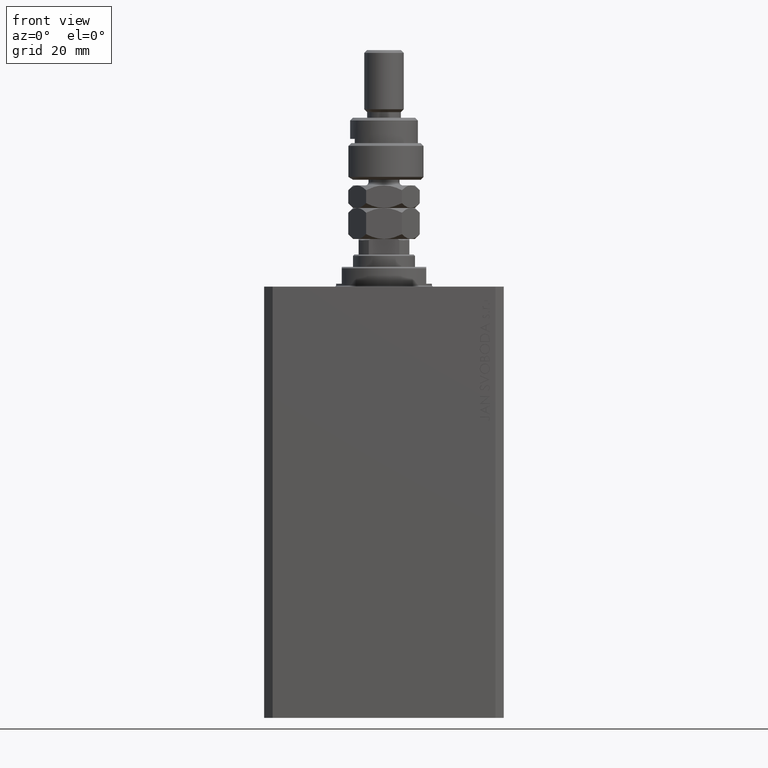
[diagram: clean part render]
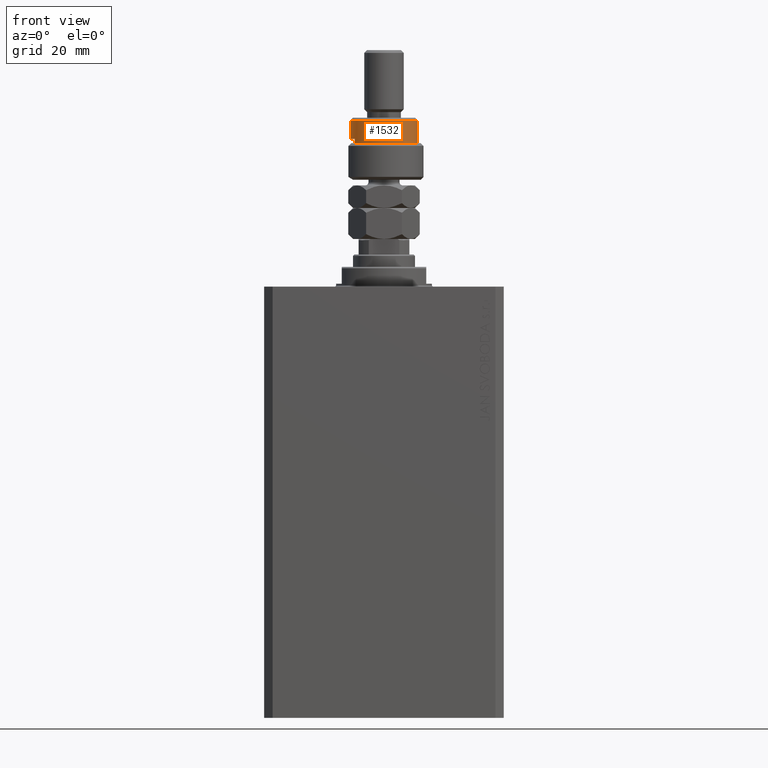
[diagram: same view with one face highlighted and labeled with its STEP entity id]
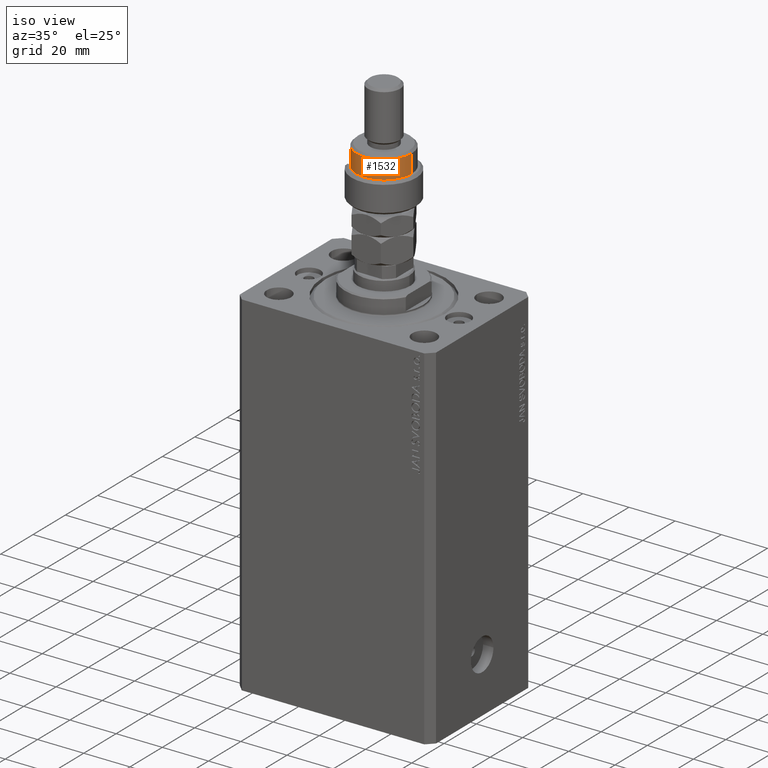
[diagram: same view with one face highlighted and labeled with its STEP entity id]
A machine part, front view. The second image highlights one B-rep face of the part: STEP entity #1532.
A second angle (iso view) of the same face is appended — the face is thin or edge-on in the first view.
In plain terms, the highlighted cylindrical surface (edge-blend (fillet) strip) has radius 12 mm, axis along (-0, -0, -1).
Its self-contained STEP definition (entity closure, byte-faithful):
#1532 = ADVANCED_FACE ( 'NONE', ( #17494 ), #32248, .T. ) ;
#2650 = ORIENTED_EDGE ( 'NONE', *, *, #22310, .T. ) ;
#2657 = CARTESIAN_POINT ( 'NONE',  ( 12.00000000000000178, 1.469576158976824144E-15, 20.99999999999999645 ) ) ;
#2775 = DIRECTION ( 'NONE',  ( 1.000000000000000000, 0.000000000000000000, 0.000000000000000000 ) ) ;
#3844 = CARTESIAN_POINT ( 'NONE',  ( -10.39230484541326760, -6.000000000000000000, 13.00000000000000000 ) ) ;
#4493 = VECTOR ( 'NONE', #10457, 1000.000000000000000 ) ;
#4706 = ORIENTED_EDGE ( 'NONE', *, *, #42876, .F. ) ;
#5088 = ORIENTED_EDGE ( 'NONE', *, *, #41873, .T. ) ;
#5980 = AXIS2_PLACEMENT_3D ( 'NONE', #45538, #35031, #12635 ) ;
#6588 = CARTESIAN_POINT ( 'NONE',  ( 0.000000000000000000, 0.000000000000000000, 20.99999999999999645 ) ) ;
#7765 = DIRECTION ( 'NONE',  ( -0.000000000000000000, -0.000000000000000000, -1.000000000000000000 ) ) ;
#8769 = ORIENTED_EDGE ( 'NONE', *, *, #44028, .T. ) ;
#10420 = ORIENTED_EDGE ( 'NONE', *, *, #43059, .F. ) ;
#10457 = DIRECTION ( 'NONE',  ( -0.000000000000000000, -0.000000000000000000, -1.000000000000000000 ) ) ;
#10664 = DIRECTION ( 'NONE',  ( 0.000000000000000000, 0.000000000000000000, 1.000000000000000000 ) ) ;
#10804 = DIRECTION ( 'NONE',  ( -1.000000000000000000, 0.000000000000000000, 0.000000000000000000 ) ) ;
#12635 = DIRECTION ( 'NONE',  ( -1.000000000000000000, 0.000000000000000000, 0.000000000000000000 ) ) ;
#12640 = VERTEX_POINT ( 'NONE', #27014 ) ;
#13969 = DIRECTION ( 'NONE',  ( 0.000000000000000000, 0.000000000000000000, -1.000000000000000000 ) ) ;
#14385 = AXIS2_PLACEMENT_3D ( 'NONE', #6588, #13969, #2775 ) ;
#16137 = VERTEX_POINT ( 'NONE', #24598 ) ;
#17494 = FACE_OUTER_BOUND ( 'NONE', #23871, .T. ) ;
#20655 = VERTEX_POINT ( 'NONE', #3844 ) ;
#21293 = DIRECTION ( 'NONE',  ( -0.000000000000000000, -0.000000000000000000, -1.000000000000000000 ) ) ;
#22310 = EDGE_CURVE ( 'NONE', #20655, #38684, #45092, .T. ) ;
#23871 = EDGE_LOOP ( 'NONE', ( #10420, #8769, #34546, #4706, #5088, #2650 ) ) ;
#24598 = CARTESIAN_POINT ( 'NONE',  ( -12.00000000000000178, 0.000000000000000000, 14.50000000000000000 ) ) ;
#27014 = CARTESIAN_POINT ( 'NONE',  ( -12.00000000000000178, 0.000000000000000000, 20.99999999999999645 ) ) ;
#27297 = CIRCLE ( 'NONE', #5980, 12.00000000000000178 ) ;
#29316 = CARTESIAN_POINT ( 'NONE',  ( -10.39230484541326760, -6.000000000000000000, 22.00000000000000000 ) ) ;
#30847 = EDGE_CURVE ( 'NONE', #12640, #16137, #40667, .T. ) ;
#32248 = CYLINDRICAL_SURFACE ( 'NONE', #33765, 12.00000000000000178 ) ;
#32378 = LINE ( 'NONE', #43590, #4493 ) ;
#32666 = DIRECTION ( 'NONE',  ( -0.000000000000000000, -0.000000000000000000, -1.000000000000000000 ) ) ;
#32814 = DIRECTION ( 'NONE',  ( 1.000000000000000000, 0.000000000000000000, 0.000000000000000000 ) ) ;
#33765 = AXIS2_PLACEMENT_3D ( 'NONE', #47051, #21293, #10804 ) ;
#34136 = VECTOR ( 'NONE', #32666, 1000.000000000000000 ) ;
#34546 = ORIENTED_EDGE ( 'NONE', *, *, #30847, .T. ) ;
#34934 = CIRCLE ( 'NONE', #14385, 12.00000000000000178 ) ;
#35031 = DIRECTION ( 'NONE',  ( 0.000000000000000000, 0.000000000000000000, -1.000000000000000000 ) ) ;
#38684 = VERTEX_POINT ( 'NONE', #40867 ) ;
#40007 = VECTOR ( 'NONE', #7765, 1000.000000000000000 ) ;
#40433 = CARTESIAN_POINT ( 'NONE',  ( -12.00000000000000178, 0.000000000000000000, 22.00000000000000000 ) ) ;
#40667 = LINE ( 'NONE', #40433, #40007 ) ;
#40867 = CARTESIAN_POINT ( 'NONE',  ( 12.00000000000000178, 1.469576158976824144E-15, 13.00000000000000000 ) ) ;
#41873 = EDGE_CURVE ( 'NONE', #43720, #20655, #46755, .T. ) ;
#42876 = EDGE_CURVE ( 'NONE', #43720, #16137, #27297, .T. ) ;
#43059 = EDGE_CURVE ( 'NONE', #44644, #38684, #32378, .T. ) ;
#43590 = CARTESIAN_POINT ( 'NONE',  ( 12.00000000000000178, 1.469576158976824144E-15, 22.00000000000000000 ) ) ;
#43720 = VERTEX_POINT ( 'NONE', #45277 ) ;
#44028 = EDGE_CURVE ( 'NONE', #44644, #12640, #34934, .T. ) ;
#44368 = AXIS2_PLACEMENT_3D ( 'NONE', #46674, #10664, #32814 ) ;
#44644 = VERTEX_POINT ( 'NONE', #2657 ) ;
#45092 = CIRCLE ( 'NONE', #44368, 12.00000000000000178 ) ;
#45277 = CARTESIAN_POINT ( 'NONE',  ( -10.39230484541326582, -5.999999999999998224, 14.50000000000000000 ) ) ;
#45538 = CARTESIAN_POINT ( 'NONE',  ( 0.000000000000000000, 0.000000000000000000, 14.50000000000000000 ) ) ;
#46674 = CARTESIAN_POINT ( 'NONE',  ( 0.000000000000000000, 0.000000000000000000, 13.00000000000000000 ) ) ;
#46755 = LINE ( 'NONE', #29316, #34136 ) ;
#47051 = CARTESIAN_POINT ( 'NONE',  ( 0.000000000000000000, 0.000000000000000000, 22.00000000000000000 ) ) ;